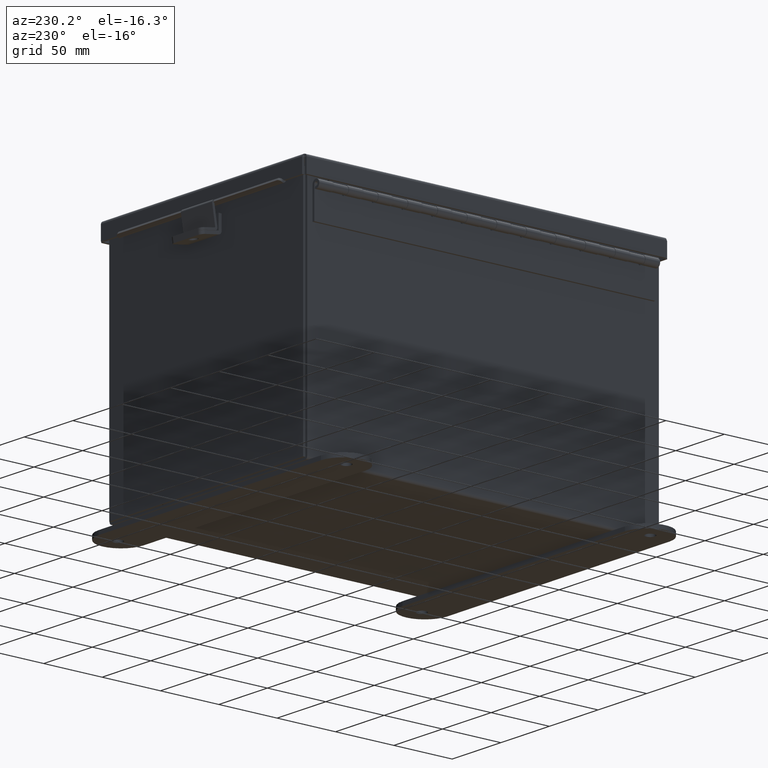
[diagram: clean part render]
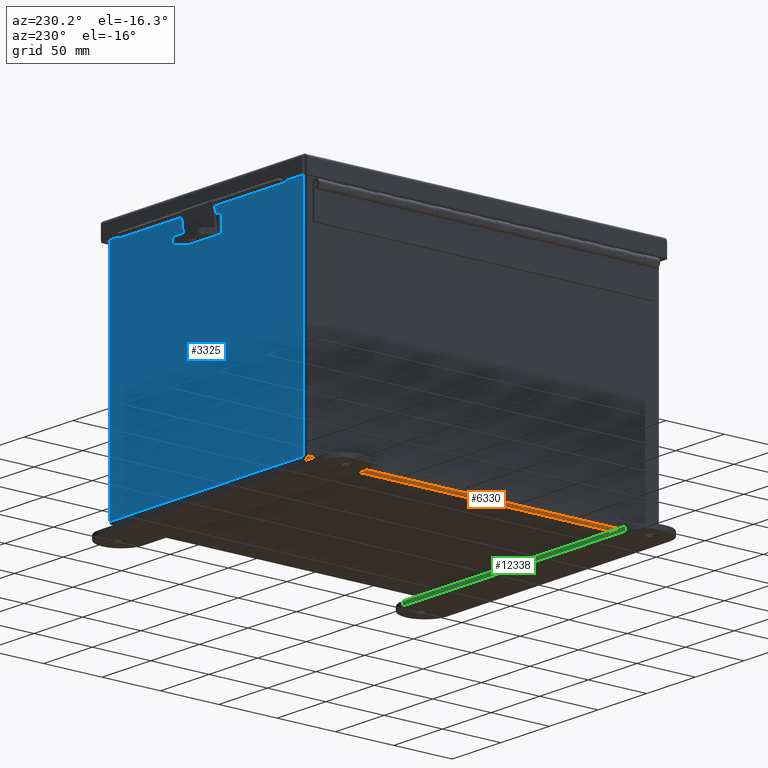
[diagram: same view with three faces highlighted in distinct colors, each labeled with its STEP entity id]
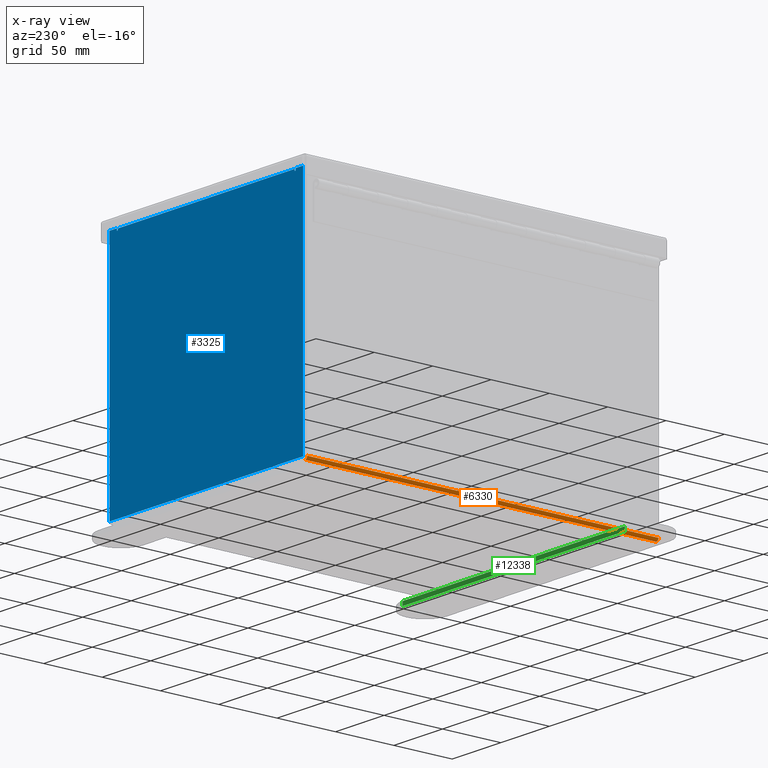
[diagram: x-ray of the same camera — body ghosted, the three highlighted faces saturated]
A machine part, auxiliary view with three faces highlighted in distinct colors.
The next image is the same camera in x-ray (body ghosted, the three faces saturated) — at least one of them is partly hidden behind the body in this view.
Their STEP definitions:

[orange] entity #6330 — the highlighted cylindrical surface (edge-blend (fillet) strip) has radius 2.2276 mm, axis along (0, -1, 0).
#751 = ORIENTED_EDGE ( 'NONE', *, *, #3950, .F. ) ;
#778 = VERTEX_POINT ( 'NONE', #6870 ) ;
#1155 = CARTESIAN_POINT ( 'NONE',  ( -3.912299999999998800, -5.925300000000000000, -0.07469999999999918400 ) ) ;
#1596 = ORIENTED_EDGE ( 'NONE', *, *, #10386, .T. ) ;
#1735 = CARTESIAN_POINT ( 'NONE',  ( -3.912299999999998800, -5.925299999999999100, 0.01300000000000091900 ) ) ;
#2389 = LINE ( 'NONE', #1155, #15008 ) ;
#2463 = VERTEX_POINT ( 'NONE', #2977 ) ;
#2914 = CARTESIAN_POINT ( 'NONE',  ( -3.999999999999998700, -5.925299999999999100, 0.01300000000000039000 ) ) ;
#2977 = CARTESIAN_POINT ( 'NONE',  ( -3.912299999999998800, -5.925299999999999100, -0.07469999999999918400 ) ) ;
#3489 = EDGE_CURVE ( 'NONE', #778, #5760, #7520, .T. ) ;
#3587 = AXIS2_PLACEMENT_3D ( 'NONE', #14659, #10729, #14620 ) ;
#3950 = EDGE_CURVE ( 'NONE', #9976, #2463, #14391, .T. ) ;
#4867 = LINE ( 'NONE', #10250, #14259 ) ;
#5151 = CARTESIAN_POINT ( 'NONE',  ( -3.999999999999998700, 5.925300000000000000, 0.01299999999999963700 ) ) ;
#5531 = CARTESIAN_POINT ( 'NONE',  ( -3.912299999999998800, -5.925300000000000000, 0.01300000000000091900 ) ) ;
#5760 = VERTEX_POINT ( 'NONE', #5151 ) ;
#6330 = ADVANCED_FACE ( 'NONE', ( #13351 ), #12989, .T. ) ;
#6870 = CARTESIAN_POINT ( 'NONE',  ( -3.912299999999998800, 5.925300000000000000, -0.07470000000000000300 ) ) ;
#7520 = CIRCLE ( 'NONE', #3587, 0.08770000000000009700 ) ;
#7985 = DIRECTION ( 'NONE',  ( -1.000000000000000000, 0.0000000000000000000, -3.480030137311043200E-015 ) ) ;
#8539 = DIRECTION ( 'NONE',  ( 1.604352766077962300E-031, 1.000000000000000000, -4.610480471308228800E-017 ) ) ;
#8732 = ORIENTED_EDGE ( 'NONE', *, *, #11105, .F. ) ;
#9976 = VERTEX_POINT ( 'NONE', #2914 ) ;
#10163 = AXIS2_PLACEMENT_3D ( 'NONE', #1735, #11074, #12546 ) ;
#10250 = CARTESIAN_POINT ( 'NONE',  ( -3.999999999999998700, 5.925300000000000000, 0.01299999999999984300 ) ) ;
#10386 = EDGE_CURVE ( 'NONE', #9976, #5760, #4867, .T. ) ;
#10729 = DIRECTION ( 'NONE',  ( -0.0000000000000000000, 1.000000000000000000, -8.208677865577646300E-017 ) ) ;
#11074 = DIRECTION ( 'NONE',  ( 0.0000000000000000000, -1.000000000000000000, 8.208677865577646300E-017 ) ) ;
#11105 = EDGE_CURVE ( 'NONE', #2463, #778, #2389, .T. ) ;
#12068 = EDGE_LOOP ( 'NONE', ( #8732, #751, #1596, #14316 ) ) ;
#12546 = DIRECTION ( 'NONE',  ( 0.0000000000000000000, 0.0000000000000000000, -1.000000000000000000 ) ) ;
#12989 = CYLINDRICAL_SURFACE ( 'NONE', #14212, 0.08770000000000026400 ) ;
#13351 = FACE_OUTER_BOUND ( 'NONE', #12068, .T. ) ;
#13399 = DIRECTION ( 'NONE',  ( -0.0000000000000000000, 1.000000000000000000, -8.208677865577646300E-017 ) ) ;
#14212 = AXIS2_PLACEMENT_3D ( 'NONE', #5531, #15302, #7985 ) ;
#14259 = VECTOR ( 'NONE', #8539, 39.37007874015748100 ) ;
#14316 = ORIENTED_EDGE ( 'NONE', *, *, #3489, .F. ) ;
#14391 = CIRCLE ( 'NONE', #10163, 0.08770000000000009700 ) ;
#14620 = DIRECTION ( 'NONE',  ( 0.0000000000000000000, 0.0000000000000000000, -1.000000000000000000 ) ) ;
#14659 = CARTESIAN_POINT ( 'NONE',  ( -3.912299999999998800, 5.925300000000000000, 0.01299999999999994600 ) ) ;
#15008 = VECTOR ( 'NONE', #13399, 39.37007874015748100 ) ;
#15302 = DIRECTION ( 'NONE',  ( 0.0000000000000000000, -1.000000000000000000, 8.208677865577646300E-017 ) ) ;

[blue] entity #3325 — the highlighted planar face has unit normal (0, -1, 0).
#55 = VECTOR ( 'NONE', #3380, 39.37007874015748100 ) ;
#219 = VERTEX_POINT ( 'NONE', #12182 ) ;
#475 = VERTEX_POINT ( 'NONE', #11555 ) ;
#508 = CARTESIAN_POINT ( 'NONE',  ( -3.619650000000000500, 0.0000000000000000000, 3.925299999999999100 ) ) ;
#810 = LINE ( 'NONE', #975, #55 ) ;
#861 = VERTEX_POINT ( 'NONE', #11013 ) ;
#880 = EDGE_CURVE ( 'NONE', #7536, #12296, #810, .T. ) ;
#934 = VECTOR ( 'NONE', #6377, 39.37007874015748100 ) ;
#975 = CARTESIAN_POINT ( 'NONE',  ( -3.582300000000000000, 1.092739197465705300E-015, 3.912299999999999200 ) ) ;
#1035 = CIRCLE ( 'NONE', #11852, 0.01867500000000003900 ) ;
#1332 = VECTOR ( 'NONE', #9545, 39.37007874015748100 ) ;
#1407 = VERTEX_POINT ( 'NONE', #2314 ) ;
#1846 = CARTESIAN_POINT ( 'NONE',  ( -3.925300000000000500, 0.0000000000000000000, 3.925299999999999100 ) ) ;
#1973 = DIRECTION ( 'NONE',  ( 0.0000000000000000000, 0.0000000000000000000, -1.000000000000000000 ) ) ;
#2223 = EDGE_CURVE ( 'NONE', #7740, #2962, #14834, .T. ) ;
#2292 = CARTESIAN_POINT ( 'NONE',  ( 3.582299999999999200, 0.0000000000000000000, 0.0000000000000000000 ) ) ;
#2314 = CARTESIAN_POINT ( 'NONE',  ( 3.582299999999999200, 0.0000000000000000000, 3.874949999999999200 ) ) ;
#2952 = ORIENTED_EDGE ( 'NONE', *, *, #3348, .T. ) ;
#2962 = VERTEX_POINT ( 'NONE', #508 ) ;
#3249 = CARTESIAN_POINT ( 'NONE',  ( 0.0000000000000000000, 0.0000000000000000000, 0.0000000000000000000 ) ) ;
#3324 = LINE ( 'NONE', #6847, #12297 ) ;
#3325 = ADVANCED_FACE ( 'NONE', ( #9440 ), #9655, .F. ) ;
#3348 = EDGE_CURVE ( 'NONE', #14550, #4095, #3324, .T. ) ;
#3380 = DIRECTION ( 'NONE',  ( 1.000000000000000000, 0.0000000000000000000, 0.0000000000000000000 ) ) ;
#3406 = DIRECTION ( 'NONE',  ( -2.170286390199978800E-014, 0.0000000000000000000, -1.000000000000000000 ) ) ;
#3422 = CARTESIAN_POINT ( 'NONE',  ( 3.582299999999999200, 0.0000000000000000000, 3.912299999999999200 ) ) ;
#3697 = LINE ( 'NONE', #2292, #4101 ) ;
#3936 = DIRECTION ( 'NONE',  ( 0.0000000000000000000, 0.0000000000000000000, -1.000000000000000000 ) ) ;
#3996 = EDGE_CURVE ( 'NONE', #475, #7740, #4634, .T. ) ;
#4088 = CARTESIAN_POINT ( 'NONE',  ( 3.600974999999999100, 0.0000000000000000000, 3.874949999999999200 ) ) ;
#4095 = VERTEX_POINT ( 'NONE', #7722 ) ;
#4101 = VECTOR ( 'NONE', #4751, 39.37007874015748100 ) ;
#4185 = VECTOR ( 'NONE', #3406, 39.37007874015748100 ) ;
#4228 = LINE ( 'NONE', #14371, #7095 ) ;
#4351 = LINE ( 'NONE', #14903, #934 ) ;
#4596 = LINE ( 'NONE', #9139, #1332 ) ;
#4634 = CIRCLE ( 'NONE', #8001, 0.01867500000000003900 ) ;
#4751 = DIRECTION ( 'NONE',  ( 0.0000000000000000000, 0.0000000000000000000, 1.000000000000000000 ) ) ;
#4814 = ORIENTED_EDGE ( 'NONE', *, *, #6474, .F. ) ;
#4968 = EDGE_CURVE ( 'NONE', #5375, #2962, #4596, .T. ) ;
#5059 = EDGE_CURVE ( 'NONE', #4095, #219, #4228, .T. ) ;
#5209 = CARTESIAN_POINT ( 'NONE',  ( -3.925300000000000500, 0.0000000000000000000, 3.925299999999999100 ) ) ;
#5232 = VERTEX_POINT ( 'NONE', #8574 ) ;
#5285 = ORIENTED_EDGE ( 'NONE', *, *, #880, .T. ) ;
#5312 = DIRECTION ( 'NONE',  ( 0.0000000000000000000, 0.0000000000000000000, -1.000000000000000000 ) ) ;
#5375 = VERTEX_POINT ( 'NONE', #5209 ) ;
#5609 = CARTESIAN_POINT ( 'NONE',  ( -3.582300000000000000, 0.0000000000000000000, 0.0000000000000000000 ) ) ;
#5730 = VECTOR ( 'NONE', #3936, 39.37007874015748100 ) ;
#5814 = CARTESIAN_POINT ( 'NONE',  ( 3.925299999999999100, 0.0000000000000000000, 3.925299999999999100 ) ) ;
#5940 = EDGE_CURVE ( 'NONE', #7536, #475, #12218, .T. ) ;
#6377 = DIRECTION ( 'NONE',  ( -0.0000000000000000000, -0.0000000000000000000, 1.000000000000000000 ) ) ;
#6474 = EDGE_CURVE ( 'NONE', #5232, #861, #10675, .T. ) ;
#6767 = DIRECTION ( 'NONE',  ( 0.0000000000000000000, 0.0000000000000000000, -1.000000000000000000 ) ) ;
#6847 = CARTESIAN_POINT ( 'NONE',  ( 3.925299999999999100, 0.0000000000000000000, 3.925299999999999100 ) ) ;
#6863 = EDGE_CURVE ( 'NONE', #1407, #12296, #3697, .T. ) ;
#7095 = VECTOR ( 'NONE', #15792, 39.37007874015748100 ) ;
#7536 = VERTEX_POINT ( 'NONE', #7646 ) ;
#7646 = CARTESIAN_POINT ( 'NONE',  ( -3.582300000000000000, 1.092739197465705300E-015, 3.912299999999999200 ) ) ;
#7690 = ORIENTED_EDGE ( 'NONE', *, *, #3996, .F. ) ;
#7722 = CARTESIAN_POINT ( 'NONE',  ( 3.925299999999999100, 0.0000000000000000000, -3.925300000000000500 ) ) ;
#7740 = VERTEX_POINT ( 'NONE', #9282 ) ;
#8001 = AXIS2_PLACEMENT_3D ( 'NONE', #8029, #11734, #6767 ) ;
#8029 = CARTESIAN_POINT ( 'NONE',  ( -3.600975000000000000, 0.0000000000000000000, 3.874949999999999200 ) ) ;
#8214 = ORIENTED_EDGE ( 'NONE', *, *, #2223, .F. ) ;
#8250 = ORIENTED_EDGE ( 'NONE', *, *, #10039, .T. ) ;
#8574 = CARTESIAN_POINT ( 'NONE',  ( 3.619650000000000500, 0.0000000000000000000, 3.925299999999999100 ) ) ;
#8729 = DIRECTION ( 'NONE',  ( 0.0000000000000000000, 0.0000000000000000000, 1.000000000000000000 ) ) ;
#8999 = ORIENTED_EDGE ( 'NONE', *, *, #4968, .T. ) ;
#9139 = CARTESIAN_POINT ( 'NONE',  ( -3.925300000000000500, 0.0000000000000000000, 3.925299999999999100 ) ) ;
#9282 = CARTESIAN_POINT ( 'NONE',  ( -3.619650000000000500, 0.0000000000000000000, 3.874949999999999200 ) ) ;
#9440 = FACE_OUTER_BOUND ( 'NONE', #10964, .T. ) ;
#9545 = DIRECTION ( 'NONE',  ( 1.000000000000000000, 0.0000000000000000000, 0.0000000000000000000 ) ) ;
#9655 = PLANE ( 'NONE',  #14660 ) ;
#9935 = LINE ( 'NONE', #1846, #10342 ) ;
#10039 = EDGE_CURVE ( 'NONE', #5232, #14550, #9935, .T. ) ;
#10342 = VECTOR ( 'NONE', #10392, 39.37007874015748100 ) ;
#10392 = DIRECTION ( 'NONE',  ( 1.000000000000000000, 0.0000000000000000000, 0.0000000000000000000 ) ) ;
#10675 = LINE ( 'NONE', #11972, #4185 ) ;
#10964 = EDGE_LOOP ( 'NONE', ( #8214, #7690, #11837, #5285, #14702, #11384, #4814, #8250, #2952, #11503, #11236, #8999 ) ) ;
#11013 = CARTESIAN_POINT ( 'NONE',  ( 3.619649999999999100, 0.0000000000000000000, 3.874949999999999200 ) ) ;
#11236 = ORIENTED_EDGE ( 'NONE', *, *, #15351, .T. ) ;
#11384 = ORIENTED_EDGE ( 'NONE', *, *, #11988, .F. ) ;
#11503 = ORIENTED_EDGE ( 'NONE', *, *, #5059, .T. ) ;
#11555 = CARTESIAN_POINT ( 'NONE',  ( -3.582300000000000000, 0.0000000000000000000, 3.874949999999999200 ) ) ;
#11607 = VECTOR ( 'NONE', #8729, 39.37007874015748100 ) ;
#11734 = DIRECTION ( 'NONE',  ( -0.0000000000000000000, 1.000000000000000000, -0.0000000000000000000 ) ) ;
#11837 = ORIENTED_EDGE ( 'NONE', *, *, #5940, .F. ) ;
#11852 = AXIS2_PLACEMENT_3D ( 'NONE', #4088, #12648, #5312 ) ;
#11972 = CARTESIAN_POINT ( 'NONE',  ( 3.619649999999915200, 0.0000000000000000000, -7.867722221753078700E-014 ) ) ;
#11988 = EDGE_CURVE ( 'NONE', #861, #1407, #1035, .T. ) ;
#12182 = CARTESIAN_POINT ( 'NONE',  ( -3.925300000000000500, 0.0000000000000000000, -3.925300000000000500 ) ) ;
#12218 = LINE ( 'NONE', #5609, #5730 ) ;
#12296 = VERTEX_POINT ( 'NONE', #3422 ) ;
#12297 = VECTOR ( 'NONE', #1973, 39.37007874015748100 ) ;
#12648 = DIRECTION ( 'NONE',  ( -0.0000000000000000000, 1.000000000000000000, -0.0000000000000000000 ) ) ;
#12719 = CARTESIAN_POINT ( 'NONE',  ( -3.619650000000000500, 0.0000000000000000000, 0.0000000000000000000 ) ) ;
#13141 = DIRECTION ( 'NONE',  ( 0.0000000000000000000, -0.0000000000000000000, -1.000000000000000000 ) ) ;
#14209 = DIRECTION ( 'NONE',  ( 0.0000000000000000000, -1.000000000000000000, 0.0000000000000000000 ) ) ;
#14371 = CARTESIAN_POINT ( 'NONE',  ( -3.925300000000000500, 0.0000000000000000000, -3.925300000000000500 ) ) ;
#14550 = VERTEX_POINT ( 'NONE', #5814 ) ;
#14660 = AXIS2_PLACEMENT_3D ( 'NONE', #3249, #14209, #13141 ) ;
#14702 = ORIENTED_EDGE ( 'NONE', *, *, #6863, .F. ) ;
#14834 = LINE ( 'NONE', #12719, #11607 ) ;
#14903 = CARTESIAN_POINT ( 'NONE',  ( -3.925300000000000500, 0.0000000000000000000, 3.925299999999999100 ) ) ;
#15351 = EDGE_CURVE ( 'NONE', #219, #5375, #4351, .T. ) ;
#15792 = DIRECTION ( 'NONE',  ( -1.000000000000000000, -0.0000000000000000000, -0.0000000000000000000 ) ) ;

[green] entity #12338 — the highlighted planar face has unit normal (-0, 1, 0).
#617 = CARTESIAN_POINT ( 'NONE',  ( -4.499999999999999100, 1.162094064949612300, 0.0000000000000000000 ) ) ;
#760 = DIRECTION ( 'NONE',  ( -1.000000000000000000, -1.214154663850783900E-016, -0.0000000000000000000 ) ) ;
#1168 = VERTEX_POINT ( 'NONE', #4139 ) ;
#1209 = LINE ( 'NONE', #13160, #1600 ) ;
#1600 = VECTOR ( 'NONE', #10692, 39.37007874015748100 ) ;
#2414 = VERTEX_POINT ( 'NONE', #14825 ) ;
#2638 = VERTEX_POINT ( 'NONE', #6770 ) ;
#4139 = CARTESIAN_POINT ( 'NONE',  ( 4.499999999999999100, 1.162094064949613400, -0.1345000000000000100 ) ) ;
#4529 = VERTEX_POINT ( 'NONE', #5862 ) ;
#4701 = PLANE ( 'NONE',  #7954 ) ;
#4734 = VECTOR ( 'NONE', #11465, 39.37007874015748100 ) ;
#4826 = LINE ( 'NONE', #8124, #8090 ) ;
#5548 = EDGE_LOOP ( 'NONE', ( #10101, #10467, #8212, #12569 ) ) ;
#5862 = CARTESIAN_POINT ( 'NONE',  ( 4.499999999999999100, 1.162094064949613400, 0.0000000000000000000 ) ) ;
#6770 = CARTESIAN_POINT ( 'NONE',  ( -4.499999999999999100, 1.162094064949612300, 0.0000000000000000000 ) ) ;
#7176 = DIRECTION ( 'NONE',  ( -1.214154663850783900E-016, 1.000000000000000000, 0.0000000000000000000 ) ) ;
#7954 = AXIS2_PLACEMENT_3D ( 'NONE', #14483, #7176, #15713 ) ;
#7993 = LINE ( 'NONE', #10290, #4734 ) ;
#7998 = LINE ( 'NONE', #617, #9152 ) ;
#8090 = VECTOR ( 'NONE', #760, 39.37007874015748100 ) ;
#8124 = CARTESIAN_POINT ( 'NONE',  ( -4.499999999999999100, 1.162094064949612300, -0.1345000000000000100 ) ) ;
#8212 = ORIENTED_EDGE ( 'NONE', *, *, #12762, .T. ) ;
#9143 = DIRECTION ( 'NONE',  ( -1.000000000000000000, -1.214154663850783900E-016, -0.0000000000000000000 ) ) ;
#9152 = VECTOR ( 'NONE', #9143, 39.37007874015748100 ) ;
#10101 = ORIENTED_EDGE ( 'NONE', *, *, #15527, .F. ) ;
#10220 = FACE_OUTER_BOUND ( 'NONE', #5548, .T. ) ;
#10290 = CARTESIAN_POINT ( 'NONE',  ( 4.499999999999999100, 1.162094064949613400, -0.1345000000000000100 ) ) ;
#10467 = ORIENTED_EDGE ( 'NONE', *, *, #14800, .F. ) ;
#10692 = DIRECTION ( 'NONE',  ( 0.0000000000000000000, 0.0000000000000000000, 1.000000000000000000 ) ) ;
#11465 = DIRECTION ( 'NONE',  ( 0.0000000000000000000, 0.0000000000000000000, 1.000000000000000000 ) ) ;
#12280 = EDGE_CURVE ( 'NONE', #2414, #2638, #1209, .T. ) ;
#12338 = ADVANCED_FACE ( 'NONE', ( #10220 ), #4701, .T. ) ;
#12569 = ORIENTED_EDGE ( 'NONE', *, *, #12280, .T. ) ;
#12762 = EDGE_CURVE ( 'NONE', #1168, #2414, #4826, .T. ) ;
#13160 = CARTESIAN_POINT ( 'NONE',  ( -4.499999999999999100, 1.162094064949612300, -0.1345000000000000100 ) ) ;
#14483 = CARTESIAN_POINT ( 'NONE',  ( -4.499999999999999100, 1.162094064949612300, -0.1345000000000000100 ) ) ;
#14800 = EDGE_CURVE ( 'NONE', #1168, #4529, #7993, .T. ) ;
#14825 = CARTESIAN_POINT ( 'NONE',  ( -4.499999999999999100, 1.162094064949612300, -0.1345000000000000100 ) ) ;
#15527 = EDGE_CURVE ( 'NONE', #4529, #2638, #7998, .T. ) ;
#15713 = DIRECTION ( 'NONE',  ( -1.000000000000000000, -1.214154663850783900E-016, 0.0000000000000000000 ) ) ;